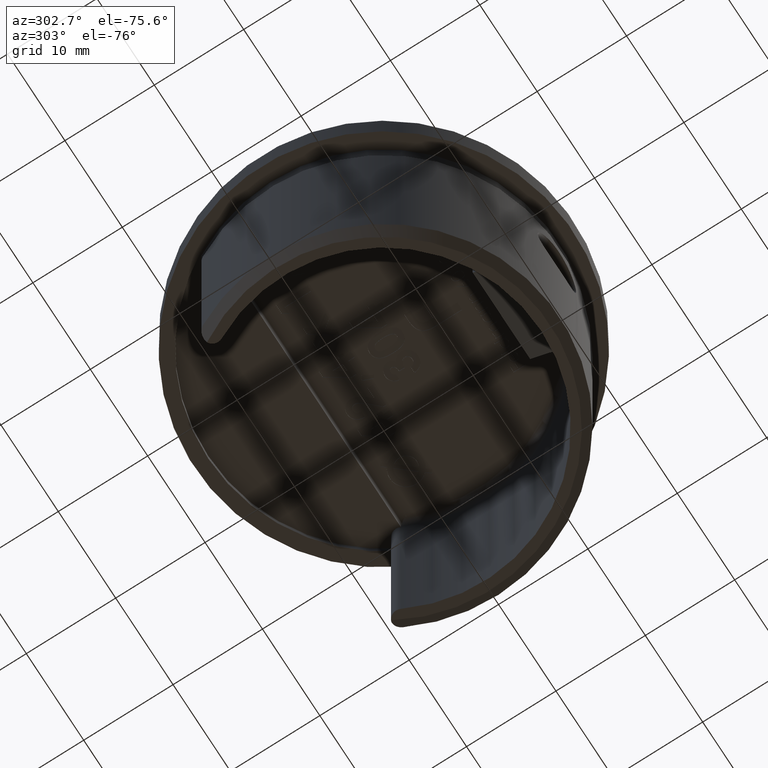
[diagram: clean part render]
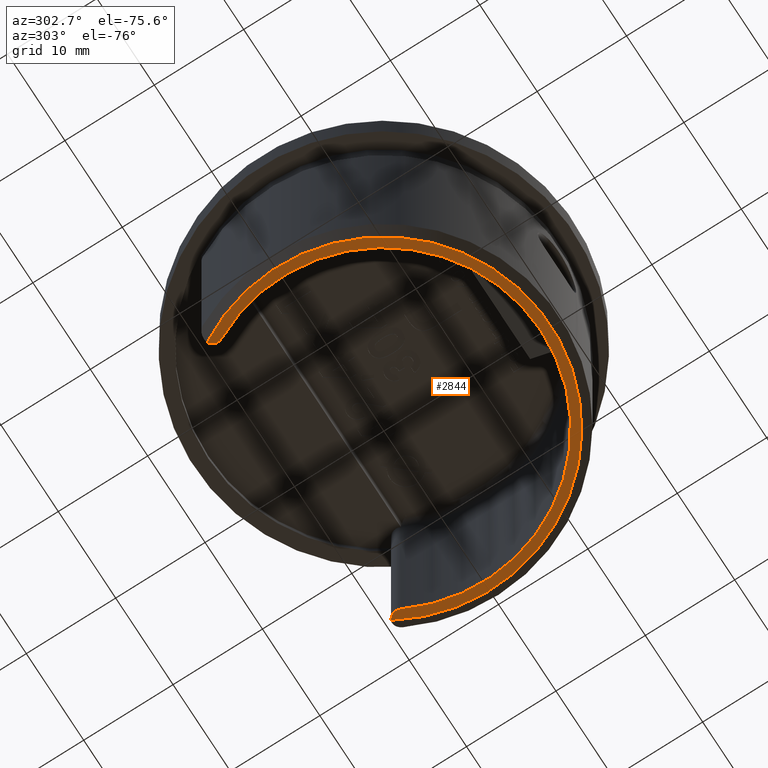
[diagram: same view with one face highlighted and labeled with its STEP entity id]
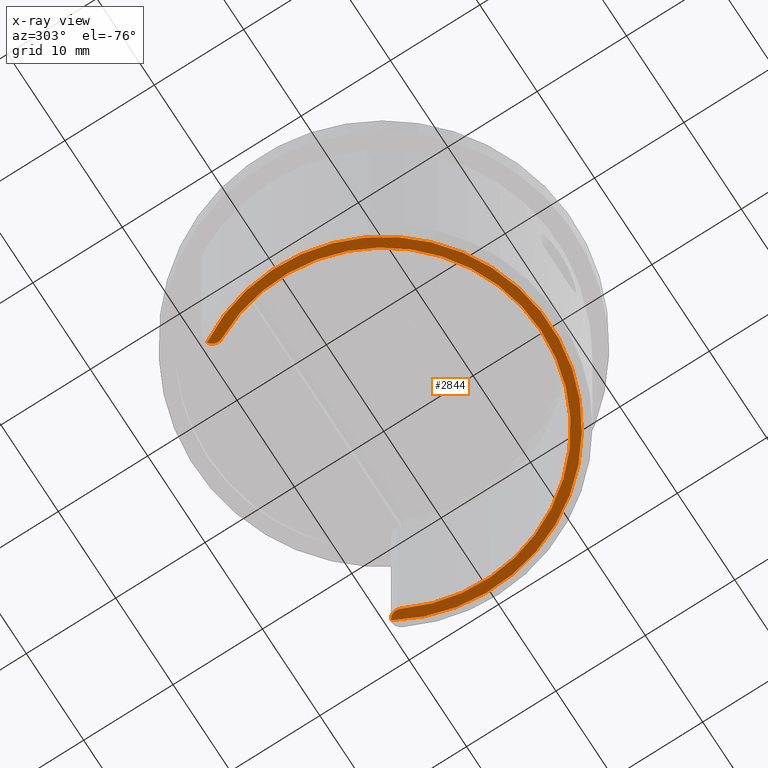
[diagram: x-ray of the same camera — body ghosted, the highlighted face saturated]
A machine part, auxiliary view. The second image highlights one B-rep face of the part: STEP entity #2844.
The next image is the same camera in x-ray: the body ghosted, the highlighted face saturated — about 0% of this face is hidden behind the body in this view.
In plain terms, the highlighted planar face has unit normal (0, 0, -1).
Its self-contained STEP definition (entity closure, byte-faithful):
#382 = CARTESIAN_POINT ( 'NONE',  ( 15.61557046979865900, 8.118741214175514600, -30.00000000000000000 ) ) ;
#828 = EDGE_CURVE ( 'NONE', #22059, #7058, #16022, .T. ) ;
#1289 = DIRECTION ( 'NONE',  ( 1.000000000000000000, 0.0000000000000000000, 0.0000000000000000000 ) ) ;
#2645 = ORIENTED_EDGE ( 'NONE', *, *, #828, .T. ) ;
#2844 = ADVANCED_FACE ( 'NONE', ( #17685 ), #15689, .T. ) ;
#3050 = EDGE_CURVE ( 'NONE', #10844, #22059, #19696, .T. ) ;
#3428 = EDGE_CURVE ( 'NONE', #22911, #10844, #12465, .T. ) ;
#4288 = ORIENTED_EDGE ( 'NONE', *, *, #3428, .T. ) ;
#4821 = DIRECTION ( 'NONE',  ( -1.000000000000000000, 0.0000000000000000000, -0.0000000000000000000 ) ) ;
#5960 = AXIS2_PLACEMENT_3D ( 'NONE', #6915, #21617, #16098 ) ;
#6128 = CARTESIAN_POINT ( 'NONE',  ( 0.0000000000000000000, 0.0000000000000000000, -30.00000000000000000 ) ) ;
#6915 = CARTESIAN_POINT ( 'NONE',  ( -16.52500000000000200, 8.591565631478351500, -30.00000000000000000 ) ) ;
#7058 = VERTEX_POINT ( 'NONE', #21773 ) ;
#7520 = CIRCLE ( 'NONE', #5960, 1.024999999999998100 ) ;
#7770 = AXIS2_PLACEMENT_3D ( 'NONE', #15936, #19618, #4821 ) ;
#7980 = DIRECTION ( 'NONE',  ( -1.000000000000000000, 0.0000000000000000000, 0.0000000000000000000 ) ) ;
#9507 = ORIENTED_EDGE ( 'NONE', *, *, #3050, .T. ) ;
#10624 = DIRECTION ( 'NONE',  ( -0.0000000000000000000, 0.0000000000000000000, -1.000000000000000000 ) ) ;
#10698 = EDGE_CURVE ( 'NONE', #7058, #22911, #7520, .T. ) ;
#10844 = VERTEX_POINT ( 'NONE', #382 ) ;
#11440 = DIRECTION ( 'NONE',  ( 0.0000000000000000000, 0.0000000000000000000, -1.000000000000000000 ) ) ;
#11757 = CARTESIAN_POINT ( 'NONE',  ( -15.61557046979866000, 8.118741214175512900, -30.00000000000000000 ) ) ;
#11914 = DIRECTION ( 'NONE',  ( -1.000000000000000000, 0.0000000000000000000, 0.0000000000000000000 ) ) ;
#12465 = CIRCLE ( 'NONE', #13132, 17.60000000000000100 ) ;
#13132 = AXIS2_PLACEMENT_3D ( 'NONE', #6128, #19311, #11914 ) ;
#15689 = PLANE ( 'NONE',  #7770 ) ;
#15936 = CARTESIAN_POINT ( 'NONE',  ( -8.262500000000001100, 4.295782815739175800, -30.00000000000000000 ) ) ;
#16022 = CIRCLE ( 'NONE', #20676, 18.64999999999999100 ) ;
#16098 = DIRECTION ( 'NONE',  ( -1.000000000000000000, 0.0000000000000000000, 0.0000000000000000000 ) ) ;
#16974 = CARTESIAN_POINT ( 'NONE',  ( 16.04934939335357000, 9.499520201044955300, -30.00000000000000000 ) ) ;
#17278 = EDGE_LOOP ( 'NONE', ( #9507, #2645, #23047, #4288 ) ) ;
#17685 = FACE_OUTER_BOUND ( 'NONE', #17278, .T. ) ;
#19311 = DIRECTION ( 'NONE',  ( -0.0000000000000000000, -0.0000000000000000000, 1.000000000000000000 ) ) ;
#19618 = DIRECTION ( 'NONE',  ( 0.0000000000000000000, 0.0000000000000000000, -1.000000000000000000 ) ) ;
#19696 = CIRCLE ( 'NONE', #23011, 1.024999999999998100 ) ;
#20596 = CARTESIAN_POINT ( 'NONE',  ( 0.0000000000000000000, 0.0000000000000000000, -30.00000000000000000 ) ) ;
#20676 = AXIS2_PLACEMENT_3D ( 'NONE', #20596, #11440, #7980 ) ;
#21617 = DIRECTION ( 'NONE',  ( 0.0000000000000000000, 0.0000000000000000000, -1.000000000000000000 ) ) ;
#21705 = CARTESIAN_POINT ( 'NONE',  ( 16.52500000000000200, 8.591565631478351500, -30.00000000000000000 ) ) ;
#21773 = CARTESIAN_POINT ( 'NONE',  ( -16.04934939335357000, 9.499520201044955300, -30.00000000000000000 ) ) ;
#22059 = VERTEX_POINT ( 'NONE', #16974 ) ;
#22911 = VERTEX_POINT ( 'NONE', #11757 ) ;
#23011 = AXIS2_PLACEMENT_3D ( 'NONE', #21705, #10624, #1289 ) ;
#23047 = ORIENTED_EDGE ( 'NONE', *, *, #10698, .T. ) ;